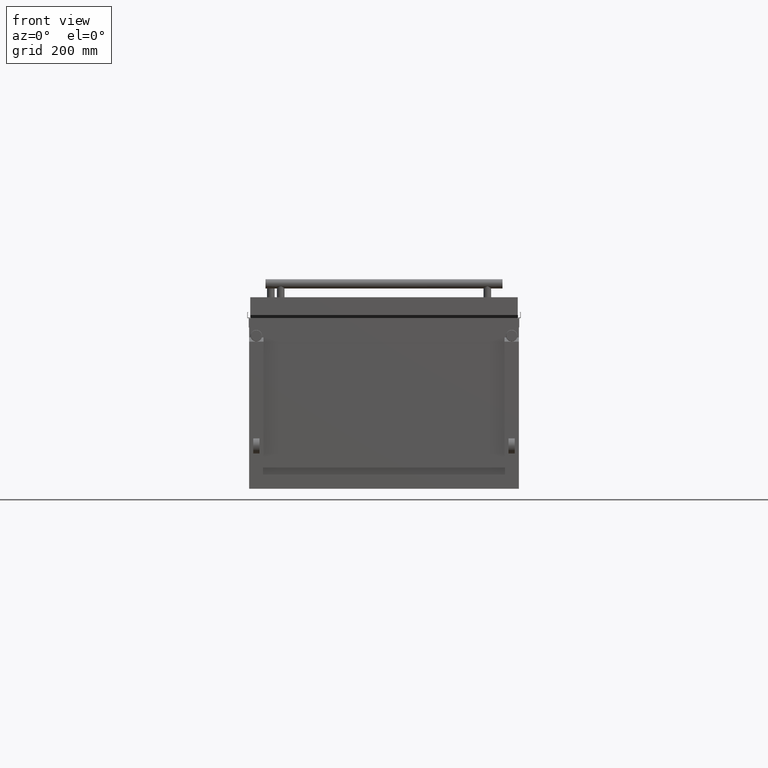
[diagram: clean part render]
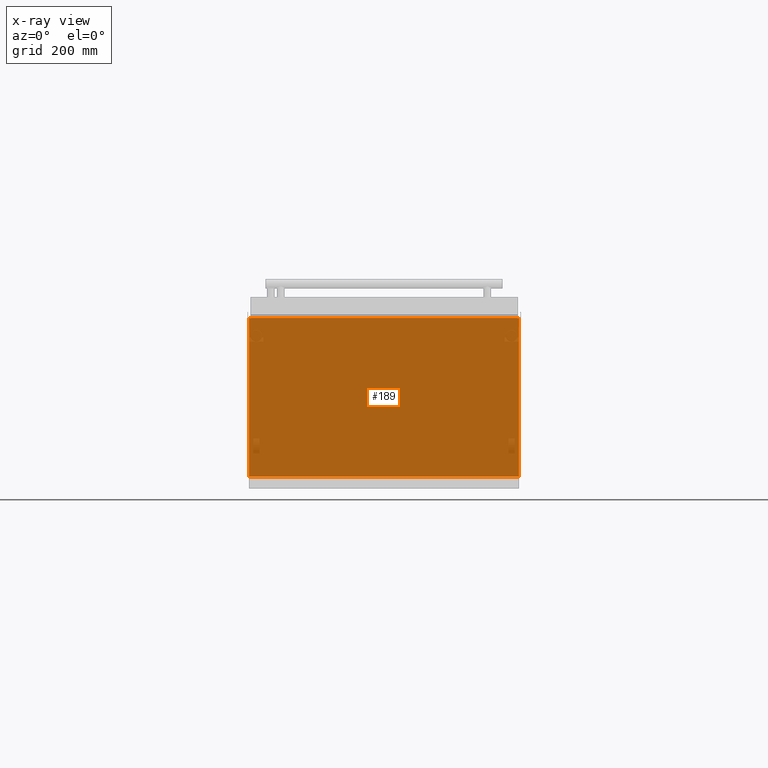
[diagram: x-ray — body ghosted, one internal face saturated and labeled with its STEP entity id]
A machine part, front view, then the same camera in x-ray: the body is ghosted and one INTERNAL B-rep face — a face not visible from any outside direction — is saturated and labeled: STEP entity #189.
In plain terms, the highlighted planar face has unit normal (0, -1, 0).
Its self-contained STEP definition (entity closure, byte-faithful):
#106 = EDGE_CURVE ( 'NONE', #8169, #7935, #3917, .T. ) ;
#189 = ADVANCED_FACE ( 'NONE', ( #5092 ), #12888, .T. ) ;
#228 = LINE ( 'NONE', #10052, #5168 ) ;
#1784 = DIRECTION ( 'NONE',  ( 0.0000000000000000000, 0.0000000000000000000, -1.000000000000000000 ) ) ;
#2417 = ORIENTED_EDGE ( 'NONE', *, *, #15653, .F. ) ;
#3917 = LINE ( 'NONE', #6589, #11429 ) ;
#4057 = ORIENTED_EDGE ( 'NONE', *, *, #106, .F. ) ;
#4092 = DIRECTION ( 'NONE',  ( 0.0000000000000000000, -1.000000000000000000, 0.0000000000000000000 ) ) ;
#5092 = FACE_OUTER_BOUND ( 'NONE', #7751, .T. ) ;
#5168 = VECTOR ( 'NONE', #14632, 1000.000000000000000 ) ;
#6589 = CARTESIAN_POINT ( 'NONE',  ( -443.0000000000000000, 953.3500000000001400, 280.0000000000001700 ) ) ;
#7053 = EDGE_CURVE ( 'NONE', #16224, #8169, #228, .T. ) ;
#7751 = EDGE_LOOP ( 'NONE', ( #10628, #2417, #4057, #10991 ) ) ;
#7844 = LINE ( 'NONE', #8356, #8543 ) ;
#7935 = VERTEX_POINT ( 'NONE', #10711 ) ;
#8169 = VERTEX_POINT ( 'NONE', #11159 ) ;
#8356 = CARTESIAN_POINT ( 'NONE',  ( -443.0000000000000000, 953.3500000000001400, 280.0000000000001700 ) ) ;
#8543 = VECTOR ( 'NONE', #18852, 1000.000000000000000 ) ;
#9368 = CARTESIAN_POINT ( 'NONE',  ( 443.0000000000000600, 953.3500000000001400, 280.0000000000001700 ) ) ;
#10052 = CARTESIAN_POINT ( 'NONE',  ( -443.0000000000000000, 953.3500000000001400, -239.9999999999998600 ) ) ;
#10293 = EDGE_CURVE ( 'NONE', #16694, #16224, #13352, .T. ) ;
#10628 = ORIENTED_EDGE ( 'NONE', *, *, #10293, .F. ) ;
#10711 = CARTESIAN_POINT ( 'NONE',  ( -443.0000000000000000, 953.3500000000001400, 280.0000000000001700 ) ) ;
#10991 = ORIENTED_EDGE ( 'NONE', *, *, #7053, .F. ) ;
#11159 = CARTESIAN_POINT ( 'NONE',  ( -443.0000000000000000, 953.3500000000001400, -239.9999999999998600 ) ) ;
#11429 = VECTOR ( 'NONE', #18787, 1000.000000000000000 ) ;
#11636 = CARTESIAN_POINT ( 'NONE',  ( 0.0000000000000000000, 953.3500000000001400, 0.0000000000000000000 ) ) ;
#12335 = AXIS2_PLACEMENT_3D ( 'NONE', #11636, #4092, #17523 ) ;
#12801 = CARTESIAN_POINT ( 'NONE',  ( 443.0000000000000600, 953.3500000000001400, -239.9999999999998600 ) ) ;
#12888 = PLANE ( 'NONE',  #12335 ) ;
#13352 = LINE ( 'NONE', #16828, #18973 ) ;
#14632 = DIRECTION ( 'NONE',  ( -1.000000000000000000, -0.0000000000000000000, -0.0000000000000000000 ) ) ;
#15653 = EDGE_CURVE ( 'NONE', #7935, #16694, #7844, .T. ) ;
#16224 = VERTEX_POINT ( 'NONE', #12801 ) ;
#16694 = VERTEX_POINT ( 'NONE', #9368 ) ;
#16828 = CARTESIAN_POINT ( 'NONE',  ( 443.0000000000000600, 953.3500000000001400, 280.0000000000001700 ) ) ;
#17523 = DIRECTION ( 'NONE',  ( 0.0000000000000000000, -0.0000000000000000000, -1.000000000000000000 ) ) ;
#18787 = DIRECTION ( 'NONE',  ( -0.0000000000000000000, -0.0000000000000000000, 1.000000000000000000 ) ) ;
#18852 = DIRECTION ( 'NONE',  ( 1.000000000000000000, 0.0000000000000000000, 0.0000000000000000000 ) ) ;
#18973 = VECTOR ( 'NONE', #1784, 1000.000000000000000 ) ;